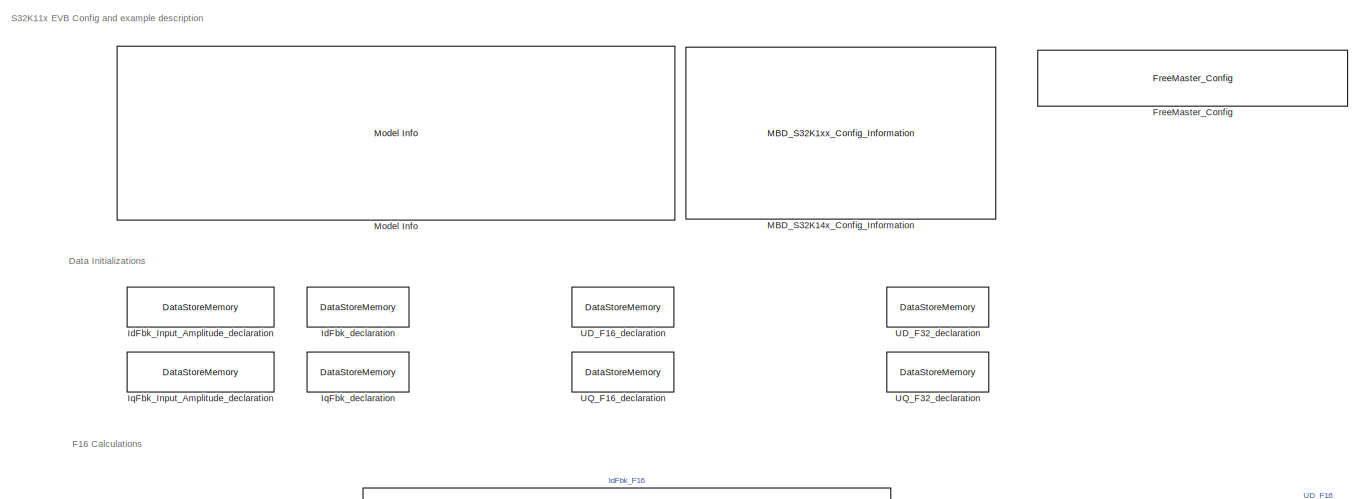
[diagram: root canvas - part 1/5, top center region]
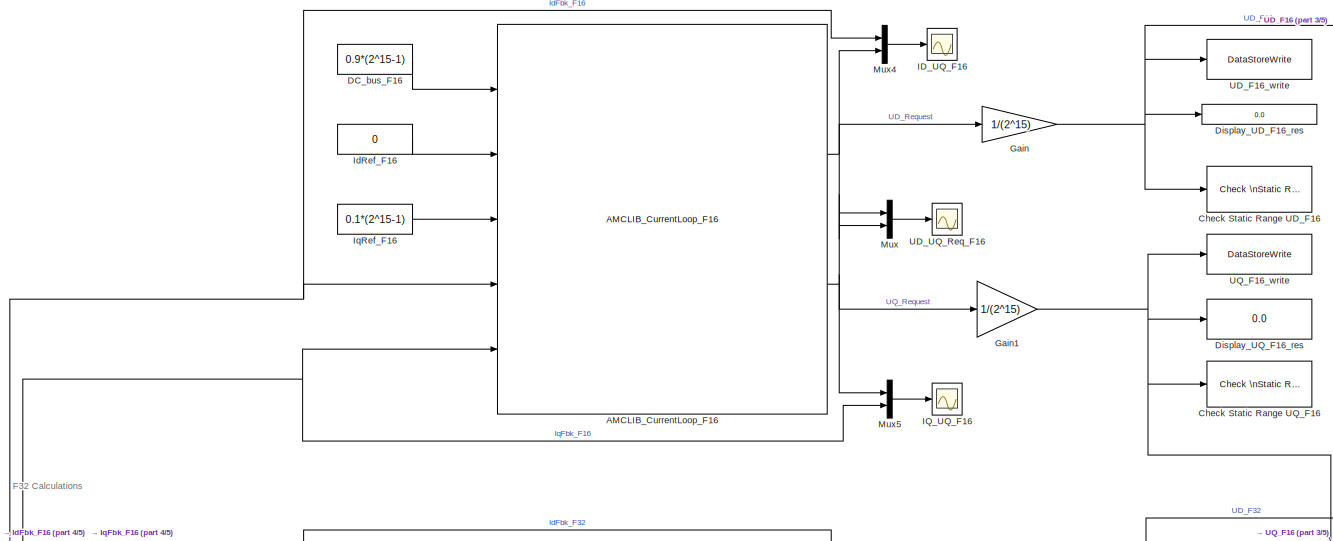
[diagram: root canvas - part 2/5, central region]
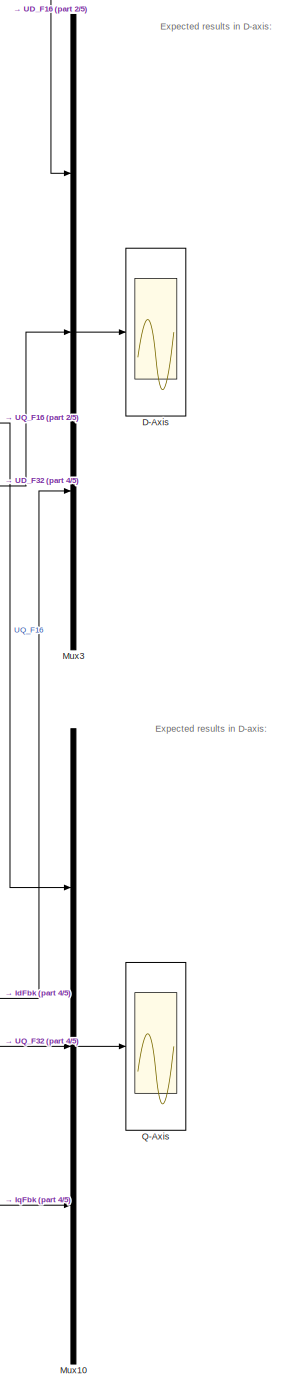
[diagram: root canvas - part 3/5, middle right region]
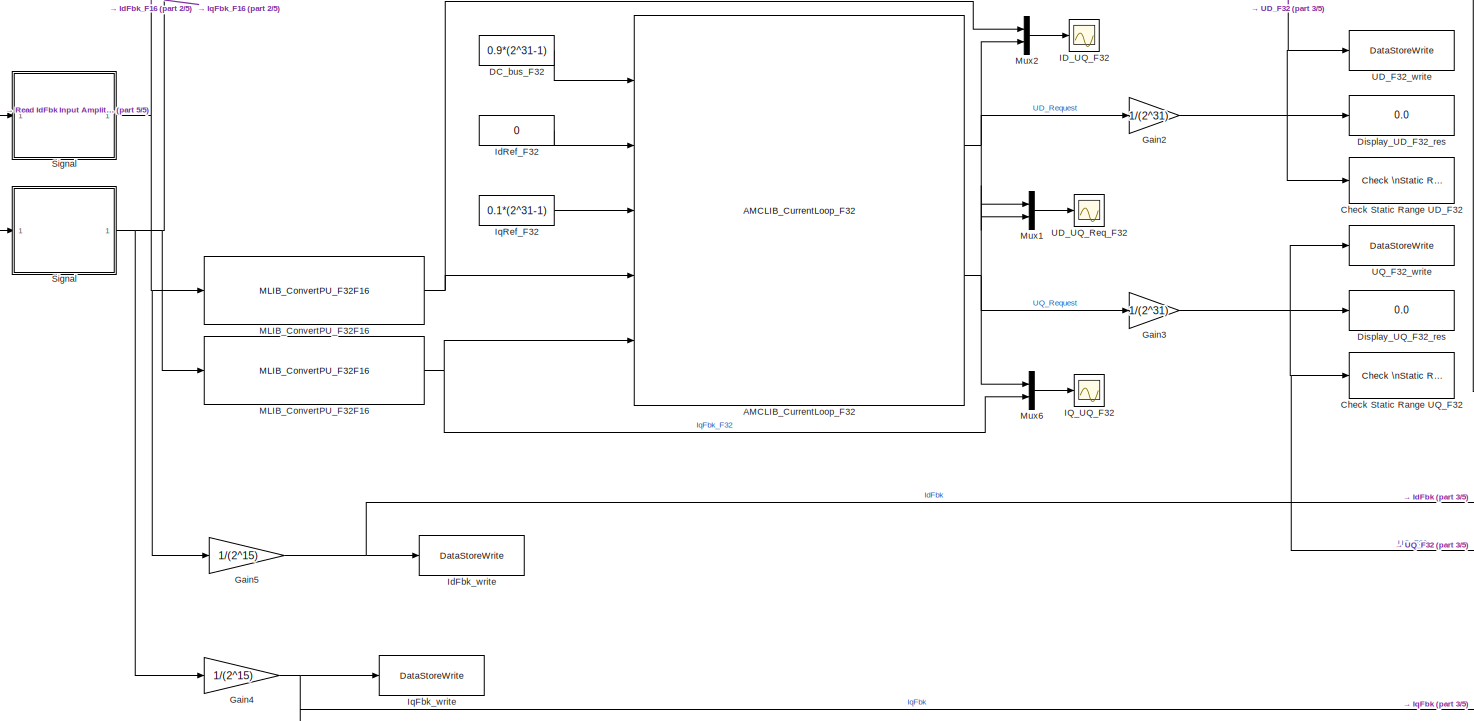
[diagram: root canvas - part 4/5, full width, bottom band]
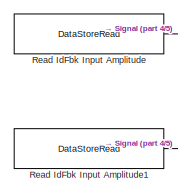
[diagram: root canvas - part 5/5, middle left region]
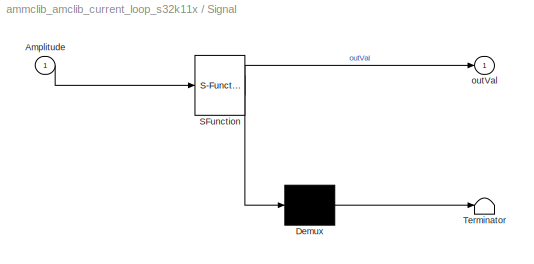
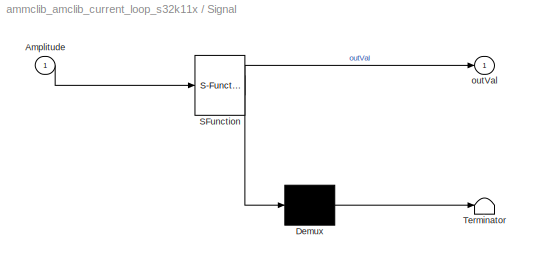
MODEL ammclib_amclib_current_loop_s32k11x
KIND model
CONFIG InitFcn = mbd_s32k_consistency_checks(bdroot(gcs));
BLOCK [Reference] AMCLIB_CurrentLoop_F16  REF=ammclib_bam_s32k11x/AMCLIB/bam_f16/AMCLIB_CurrentLoop_F16  (lib defined in mdl_5e542557caf3)
  Ports = [5, 2]
  SID = 703
  SourceBlock = ammclib_bam_s32k11x/AMCLIB/bam_f16/AMCLIB_CurrentLoop_F16
  SourceType = AMCLIB_CurrentLoop_F16
  f16CC1scD = 0.006*(2^15-1)
  f16CC1scQ = 0.006*(2^15-1)
  f16CC2scD = 0.006*(2^15-1)
  f16CC2scQ = 0.006*(2^15-1)
  u16NShiftD = 0
  u16NShiftQ = 0
BLOCK [Reference] AMCLIB_CurrentLoop_F32  REF=ammclib_bam_s32k11x/AMCLIB/bam_f32/AMCLIB_CurrentLoop_F32  (lib defined in mdl_5e542557caf3)
  Ports = [5, 2]
  SID = 745
  SourceBlock = ammclib_bam_s32k11x/AMCLIB/bam_f32/AMCLIB_CurrentLoop_F32
  SourceType = AMCLIB_CurrentLoop_F32
  f32CC1scD = 0.006*(2^31-1)
  f32CC1scQ = 0.006*(2^31-1)
  f32CC2scD = 0.006*(2^31-1)
  f32CC2scQ = 0.006*(2^31-1)
  u16NShiftD = 0
  u16NShiftQ = 0
BLOCK [Reference] Check Static Range UD_F16  REF=simulink/Model\nVerification/Check \nStatic Range
  Description = -0.9*(2^15-1) <= u <= 0.9*(2^15-1)
  Ports = [1]
  SID = 705
  SourceBlock = simulink/Model\nVerification/Check \nStatic Range
  SourceProductBaseCode = SL
  SourceProductName = Simulink
  SourceType = Checks_SRange
  enabled = on
  export = off
  icon = graphic
  max = 0.9*(2^15-1)
  max_included = on
  min = -0.9*(2^15-1)
  min_included = on
  stopWhenAssertionFail = on
BLOCK [Reference] Check Static Range UD_F32  REF=simulink/Model\nVerification/Check \nStatic Range
  Description = -0.9*(2^31-1) <= u <= 0.9*(2^31-1)
  Ports = [1]
  SID = 727
  SourceBlock = simulink/Model\nVerification/Check \nStatic Range
  SourceProductBaseCode = SL
  SourceProductName = Simulink
  SourceType = Checks_SRange
  enabled = on
  export = off
  icon = graphic
  max = 0.9*(2^31-1)
  max_included = on
  min = -0.9*(2^31-1)
  min_included = on
  stopWhenAssertionFail = on
BLOCK [Reference] Check Static Range UQ_F16   REF=simulink/Model\nVerification/Check \nStatic Range
  Description = -0.9*(2^15-1) <= u <= 0.9*(2^15-1)
  Ports = [1]
  SID = 585
  SourceBlock = simulink/Model\nVerification/Check \nStatic Range
  SourceProductBaseCode = SL
  SourceProductName = Simulink
  SourceType = Checks_SRange
  enabled = on
  export = off
  icon = graphic
  max = 0.9*(2^15-1)
  max_included = on
  min = -0.9*(2^15-1)
  min_included = on
  stopWhenAssertionFail = on
BLOCK [Reference] Check Static Range UQ_F32  REF=simulink/Model\nVerification/Check \nStatic Range
  Description = -0.9*(2^31-1) <= u <= 0.9*(2^31-1)
  Ports = [1]
  SID = 728
  SourceBlock = simulink/Model\nVerification/Check \nStatic Range
  SourceProductBaseCode = SL
  SourceProductName = Simulink
  SourceType = Checks_SRange
  enabled = on
  export = off
  icon = graphic
  max = 0.9*(2^31-1)
  max_included = on
  min = -0.9*(2^31-1)
  min_included = on
  stopWhenAssertionFail = on
BLOCK [Scope] D-Axis
  NumInputPorts = 1
  Ports = [1]
  SID = 701
  ScopeSpecificationString = Simulink.scopes.TimeScopeBlockCfg('CurrentConfiguration', extmgr.ConfigurationSet(extmgr.Configuration('Core','General UI',true),extmgr.Configuration('Core','Source UI',true),extmgr.Configuration('Sources','WiredSimulink',true,'DataLoggingVariableName','ScopeData6'),extmgr.Configuration('Visuals','Time Domain',true,'SerializedDisplays',{struct('MinYLimReal','-0.64952','MaxYLimReal','0.64952','YLab...<+1796ch>
BLOCK [Constant] DC_bus_F16
  OutDataTypeStr = Inherit: Inherit via back propagation
  SID = 643
  Value = 0.9*(2^15-1)
BLOCK [Constant] DC_bus_F32
  OutDataTypeStr = Inherit: Inherit via back propagation
  SID = 729
  Value = 0.9*(2^31-1)
BLOCK [Display] Display_UD_F16_res
  Decimation = 1
  Format = long
  Ports = [1]
  SID = 706
BLOCK [Display] Display_UD_F32_res
  Decimation = 1
  Format = long
  Ports = [1]
  SID = 730
BLOCK [Display] Display_UQ_F16_res
  Decimation = 1
  Format = long
  Ports = [1]
  SID = 579
BLOCK [Display] Display_UQ_F32_res
  Decimation = 1
  Format = long
  Ports = [1]
  SID = 731
BLOCK [Reference] FreeMaster_Config  REF=mbd_s32k1xx_ec_toolbox/Utility Blocks/FreeMaster_Config
  Ports = []
  SID = 564
  SourceBlock = mbd_s32k1xx_ec_toolbox/Utility Blocks/FreeMaster_Config
  SourceType = fm_s32k_config
  baudrate = 2400
  comm_buffer_size = 255
  comm_buffer_size_auto = on
  comm_rqueue_size = 32
  comm_rqueue_size_default = on
  interface = LPUART0
  isr_prio = 1
  max_rec_vars = 8
  max_scope_vars = 8
  mode = Poll-driven
  rec_buff_size = 1024
  rec_timebase = 0
  rec_timebase_unit = milliseconds
  rxd = PTB0: [LPUART0_RX | Receive]
  show_adv_opts = on
  txd = PTB1: [LPUART0_TX | Transmit]
  use_recorder = on
  use_scope = on
BLOCK [Gain] Gain
  Gain = 1/(2^15)
  OutDataTypeStr = Inherit: Inherit via back propagation
  ParamDataTypeStr = Inherit: Inherit via internal rule
  SID = 775
  SaturateOnIntegerOverflow = off
BLOCK [Gain] Gain1
  Gain = 1/(2^15)
  OutDataTypeStr = Inherit: Inherit via back propagation
  ParamDataTypeStr = Inherit: Inherit via internal rule
  SID = 776
  SaturateOnIntegerOverflow = off
BLOCK [Gain] Gain2
  Gain = 1/(2^31)
  OutDataTypeStr = Inherit: Inherit via back propagation
  ParamDataTypeStr = Inherit: Inherit via internal rule
  SID = 777
  SaturateOnIntegerOverflow = off
BLOCK [Gain] Gain3
  Gain = 1/(2^31)
  OutDataTypeStr = Inherit: Inherit via back propagation
  ParamDataTypeStr = Inherit: Inherit via internal rule
  SID = 778
  SaturateOnIntegerOverflow = off
BLOCK [Gain] Gain4
  Gain = 1/(2^15)
  OutDataTypeStr = Inherit: Inherit via back propagation
  ParamDataTypeStr = Inherit: Inherit via internal rule
  SID = 779
  SaturateOnIntegerOverflow = off
BLOCK [Gain] Gain5
  Gain = 1/(2^15)
  OutDataTypeStr = Inherit: Inherit via back propagation
  ParamDataTypeStr = Inherit: Inherit via internal rule
  SID = 785
  SaturateOnIntegerOverflow = off
BLOCK [Scope] ID_UQ_F16
  NumInputPorts = 1
  Ports = [1]
  SID = 718
  ScopeSpecificationString = Simulink.scopes.TimeScopeBlockCfg('CurrentConfiguration', extmgr.ConfigurationSet(extmgr.Configuration('Core','General UI',true),extmgr.Configuration('Core','Source UI',true),extmgr.Configuration('Sources','WiredSimulink',true,'DataLoggingVariableName','ScopeData2'),extmgr.Configuration('Visuals','Time Domain',true,'SerializedDisplays',{struct('MinYLimReal','-21282.5','MaxYLimReal','21282.5','YLab...<+1418ch>
BLOCK [Scope] ID_UQ_F32
  NumInputPorts = 1
  Ports = [1]
  SID = 732
  ScopeSpecificationString = Simulink.scopes.TimeScopeBlockCfg('CurrentConfiguration', extmgr.ConfigurationSet(extmgr.Configuration('Core','General UI',true),extmgr.Configuration('Core','Source UI',true),extmgr.Configuration('Sources','WiredSimulink',true,'DataLoggingVariableName','ScopeData4'),extmgr.Configuration('Visuals','Time Domain',true,'SerializedDisplays',{struct('MinYLimReal','-1394831543.75','MaxYLimReal','13948315...<+1464ch>
BLOCK [Scope] IQ_UQ_F16
  NumInputPorts = 1
  Ports = [1]
  SID = 719
  ScopeSpecificationString = Simulink.scopes.TimeScopeBlockCfg('CurrentConfiguration', extmgr.ConfigurationSet(extmgr.Configuration('Core','General UI',true),extmgr.Configuration('Core','Source UI',true),extmgr.Configuration('Sources','WiredSimulink',true,'DataLoggingVariableName','ScopeData3'),extmgr.Configuration('Visuals','Time Domain',true,'SerializedDisplays',{struct('MinYLimReal','-19015.5','MaxYLimReal','21029.5','YLab...<+1385ch>
BLOCK [Scope] IQ_UQ_F32
  NumInputPorts = 1
  Ports = [1]
  SID = 733
  ScopeSpecificationString = Simulink.scopes.TimeScopeBlockCfg('CurrentConfiguration', extmgr.ConfigurationSet(extmgr.Configuration('Core','General UI',true),extmgr.Configuration('Core','Source UI',true),extmgr.Configuration('Sources','WiredSimulink',true,'DataLoggingVariableName','ScopeData5'),extmgr.Configuration('Visuals','Time Domain',true,'SerializedDisplays',{struct('MinYLimReal','-1245986816.00000','MaxYLimReal','13782...<+1449ch>
BLOCK [DataStoreMemory] IdFbk_Input_Amplitude_declaration
  DataStoreName = IdFbk_Input_Amplitude
  InitialValue = 0.25*(2^15-1)
  OutDataTypeStr = int16
  OutMax = 32767
  OutMin = -32768
  Priority = 1
  SID = 648
  ShowAdditionalParam = off
  WriteAfterReadMsg = warning
  WriteAfterWriteMsg = warning
BLOCK [DataStoreMemory] IdFbk_declaration
  DataStoreName = IdFbk
  OutDataTypeStr = single
  OutMax = 1
  OutMin = -1
  Priority = 1
  SID = 649
  ShowAdditionalParam = off
  WriteAfterReadMsg = warning
  WriteAfterWriteMsg = warning
BLOCK [DataStoreWrite] IdFbk_write
  DataStoreName = IdFbk
  Ports = [1]
  SID = 786
BLOCK [Constant] IdRef_F16
  OutDataTypeStr = Inherit: Inherit via back propagation
  SID = 711
  Value = 0
BLOCK [Constant] IdRef_F32
  OutDataTypeStr = Inherit: Inherit via back propagation
  SID = 734
  Value = 0
BLOCK [DataStoreMemory] IqFbk_Input_Amplitude_declaration
  DataStoreName = IqFbk_Input_Amplitude
  InitialValue = 0.25*(2^15-1)
  OutDataTypeStr = int16
  OutMax = 32767
  OutMin = -32768
  Priority = 1
  SID = 709
  ShowAdditionalParam = off
  WriteAfterReadMsg = warning
  WriteAfterWriteMsg = warning
BLOCK [DataStoreMemory] IqFbk_declaration
  DataStoreName = IqFbk
  OutDataTypeStr = single
  OutMax = 1
  OutMin = -1
  Priority = 1
  SID = 710
  ShowAdditionalParam = off
  WriteAfterReadMsg = warning
  WriteAfterWriteMsg = warning
BLOCK [DataStoreWrite] IqFbk_write
  DataStoreName = IqFbk
  Ports = [1]
  SID = 784
BLOCK [Constant] IqRef_F16
  OutDataTypeStr = Inherit: Inherit via back propagation
  SID = 712
  Value = 0.1*(2^15-1)
BLOCK [Constant] IqRef_F32
  OutDataTypeStr = Inherit: Inherit via back propagation
  SID = 735
  Value = 0.1*(2^31-1)
BLOCK [Reference] MBD_S32K14x_Config_Information  REF=mbd_s32k1xx_ec_toolbox/MBD_S32K1xx_Config_Information
  ADC_PcrCheckEnDis = on
  AMMCLIB_PcrCheckEnDis = on
  CMP_PcrCheckEnDis = on
  CSEc_PcrCheckEnDis = on
  ConfigParams_PcrCheckEnDis = on
  FM_PcrCheckEnDis = on
  FTM_Dual_Edge_Inputs_PcrCheckEnDis = on
  FTM_Hall_Sensor_Inputs_PcrCheckEnDis = on
  FTM_Input_Edge_Inputs_PcrCheckEnDis = on
  FTM_PWM_PcrCheckEnDis = on
  FTM_Quadrature_Inputs_PcrCheckEnDis = on
  FlexCAN_PcrCheckEnDis = on
  FlexIO_PcrCheckEnDis = on
  GPIO_InputPcrCheckEnDis = on
  GPIO_OutputPcrCheckEnDis = on
  LIN_PcrCheckEnDis = on
  LPI2C_PcrCheckEnDis = on
  LPSPI_PcrCheckEnDis = on
  LPTMR_PcrCheckEnDis = on
  LPUART_PcrCheckEnDis = on
  ModelRef_PcrCheckEnDis = on
  PDB0_PcrCheckEnDis = on
  PIT_PcrCheckEnDis = on
  Ports = []
  Priority = 0
  Profile_PcrCheckEnDis = on
  RTC_PcrCheckEnDis = on
  SBC_PcrCheckEnDis = on
  SID = 1
  SourceBlock = mbd_s32k1xx_ec_toolbox/MBD_S32K1xx_Config_Information
  SourceType = MBDTBX_EC_S32K
  WDOG_PcrCheckEnDis = on
  config_params = []
  disp_str = Target : S32K142-16KB_SRAM\nPackage : 100-pin\nSystem clock : 80 MHz\nXTAL clock : External 8 MHz\nCompiler : GCC\nTarget Type : FLASH\nDownload Code after build : (OpenSDA: E)\nStep Tick Interrupt Priority : 15
  ds_import_enable = on
  eDMA_PcrCheckEnDis = on
  gcc_target_assemble_opts = -mcpu=cortex-m0plus -mthumb -g
  gcc_target_compile_opts = -mcpu=cortex-m0plus -mthumb -O1 -g -gstrict-dwarf
  gcc_target_default_lcf = on
  gcc_target_link_opts = -mcpu=cortex-m0plus -mthumb
  gcc_target_user_lcf = S32K116_17_flash.ld
  ghs_target_assemble_opts = -mcpu=cortexm0plus -mthumb -fsoft --gnu_asm
  ghs_target_compile_opts = -mcpu=cortexm0plus -mthumb -fsoft -Ogeneral -Wundef -Wimplicit-int -Wshadow -Wtrigraphs --no_commons --gnu_asm -gnu99 -gdwarf-2 -G
  ghs_target_default_lcf = off
  ghs_target_link_opts = -mcpu=cortexm0plus -mthumb -fsoft
  ghs_target_user_lcf = S32K116_17_flash.ld
  iar_target_assemble_opts = --thumb
  iar_target_compile_opts = --thumb -Ol -e --debug --dlib_config normal
  iar_target_default_lcf = off
  iar_target_link_opts = --no_exceptions --vfe --inline
  iar_target_user_lcf = S32K116_17_flash.icf
  mbdt_ver = 0
  mcu_steptick_prio = 3
  mcu_steptick_timer = LPIT Channel 0
  mcu_system_clock_freq = 40
  mcu_target_name = S32K116
  mcu_target_package = 48-LQFP
  mcu_target_sram_size = 17KB
  mcu_xtal_freq = External 40
  pil_download_enable = off
  pil_download_rate = 57600
  pil_opensda_drive = Custom
  pil_opensda_drive_custom = D
  pil_uart_instance = 0
  pil_uart_rx = PTA2: [LPUART0_RX | Receive]
  pil_uart_tx = PTA3: [LPUART0_TX | Transmit]
  rbl_com_port = Custom
  rbl_com_port_custom = COM1
  rbl_download_enable = on
  rbl_download_interface = OpenSDA
  rbl_restart_request = off
  rbl_start_delay = 5000000
  target_compiler = GCC
  target_memory = FLASH
BLOCK [Reference] MLIB_ConvertPU_F32F16   REF=ammclib_bam_s32k11x/MLIB/bam_f32/MLIB_ConvertPU_F32F16  (lib defined in mdl_5e542557caf3)
  Ports = [1, 1]
  SID = 722
  SourceBlock = ammclib_bam_s32k11x/MLIB/bam_f32/MLIB_ConvertPU_F32F16
  SourceType = MLIB_ConvertPU_F32
BLOCK [Reference] MLIB_ConvertPU_F32F16    REF=ammclib_bam_s32k11x/MLIB/bam_f32/MLIB_ConvertPU_F32F16  (lib defined in mdl_5e542557caf3)
  Ports = [1, 1]
  SID = 744
  SourceBlock = ammclib_bam_s32k11x/MLIB/bam_f32/MLIB_ConvertPU_F32F16
  SourceType = MLIB_ConvertPU_F32
BLOCK [Reference] Model Info  REF=simulink/Model-Wide\nUtilities/Model Info
  DisplayStringWithTags = Model Name: %<ModelName>\n\nDescription: %<Description>
  Frame = off
  HorizontalTextAlignment = Left
  LeftAlignmentValue = 0.02
  MaskDisplayString = Model Name: ammclib_amclib_current_loop_s32k11x\\n\\nDescription: This model tests the AMMCLIB AMCLIB Current Loop blocks\\n\\nValidation:\\n- Run the model in Simulation and compare the Inputs vs Outputs results.\\n- Open Freemaster (ammclib_amclib_current_loop_s32k11x.pmp) and compare the HW results against the Simulated ones
  Ports = []
  SID = 524
  SourceBlock = simulink/Model-Wide\nUtilities/Model Info
  SourceProductBaseCode = SL
  SourceProductName = Simulink
  SourceType = CMBlock
BLOCK [Mux] Mux
  DisplayOption = bar
  Inputs = 2
  Ports = [2, 1]
  SID = 716
BLOCK [Mux] Mux1
  DisplayOption = bar
  Inputs = 2
  Ports = [2, 1]
  SID = 737
BLOCK [Mux] Mux10
  DisplayOption = bar
  Inputs = 3
  Ports = [3, 1]
  SID = 773
BLOCK [Mux] Mux2
  DisplayOption = bar
  Inputs = 2
  Ports = [2, 1]
  SID = 738
BLOCK [Mux] Mux3
  DisplayOption = bar
  Inputs = 3
  Ports = [3, 1]
  SID = 699
BLOCK [Mux] Mux4
  DisplayOption = bar
  Inputs = 2
  Ports = [2, 1]
  SID = 717
BLOCK [Mux] Mux5
  DisplayOption = bar
  Inputs = 2
  Ports = [2, 1]
  SID = 720
BLOCK [Mux] Mux6
  DisplayOption = bar
  Inputs = 2
  Ports = [2, 1]
  SID = 739
BLOCK [Scope] Q-Axis
  NumInputPorts = 1
  Ports = [1]
  SID = 772
  ScopeSpecificationString = Simulink.scopes.TimeScopeBlockCfg('CurrentConfiguration', extmgr.ConfigurationSet(extmgr.Configuration('Core','General UI',true),extmgr.Configuration('Core','Source UI',true),extmgr.Configuration('Sources','WiredSimulink',true,'DataLoggingVariableName','ScopeData10'),extmgr.Configuration('Visuals','Time Domain',true,'SerializedDisplays',{struct('MinYLimReal','-0.58031','MaxYLimReal','0.64183','YLa...<+1765ch>
BLOCK [DataStoreRead] Read IdFbk Input Amplitude
  DataStoreName = IdFbk_Input_Amplitude
  Ports = [0, 1]
  SID = 651
BLOCK [DataStoreRead] Read IdFbk Input Amplitude1
  DataStoreName = IqFbk_Input_Amplitude
  Ports = [0, 1]
  SID = 713
BLOCK [SubSystem] Signal
  ErrorFcn = Stateflow.Translate.translate
  PermitHierarchicalResolution = ExplicitOnly
  Ports = [1, 1]
  RequestExecContextInheritance = off
  SFBlockType = Chart
  SID = 650
  TreatAsAtomicUnit = on
  Variant = off
BLOCK [SubSystem] Signal 
  ErrorFcn = Stateflow.Translate.translate
  PermitHierarchicalResolution = ExplicitOnly
  Ports = [1, 1]
  RequestExecContextInheritance = off
  SFBlockType = Chart
  SID = 714
  TreatAsAtomicUnit = on
  Variant = off
BLOCK [Demux] Signal / Demux 
  Outputs = 1
  Ports = [1, 1]
  SID = 714::32
BLOCK [S-Function] Signal / SFunction 
  EnableBusSupport = on
  FunctionName = sf_sfun
  PortCounts = [1 2]
  Ports = [1, 2]
  SFcnIsStateOwnerBlock = off
  SFunctionDeploymentMode = off
  SID = 714::31
  Tag = Stateflow S-Function ammclib_amclib_current_loop_s32k11x 2
BLOCK [Terminator] Signal / Terminator 
  SID = 714::33
BLOCK [Inport] Signal /Amplitude
  IconDisplay = Port number
  SID = 714::30
BLOCK [Outport] Signal /outVal
  IconDisplay = Port number
  SID = 714::5
BLOCK [Demux] Signal/ Demux 
  Outputs = 1
  Ports = [1, 1]
  SID = 650::32
BLOCK [S-Function] Signal/ SFunction 
  EnableBusSupport = on
  FunctionName = sf_sfun
  PortCounts = [1 2]
  Ports = [1, 2]
  SFcnIsStateOwnerBlock = off
  SFunctionDeploymentMode = off
  SID = 650::31
  Tag = Stateflow S-Function ammclib_amclib_current_loop_s32k11x 1
BLOCK [Terminator] Signal/ Terminator 
  SID = 650::33
BLOCK [Inport] Signal/Amplitude
  IconDisplay = Port number
  SID = 650::30
BLOCK [Outport] Signal/outVal
  IconDisplay = Port number
  SID = 650::5
BLOCK [DataStoreMemory] UD_F16_declaration
  DataStoreName = UD_F16
  OutDataTypeStr = single
  Priority = 2
  ReadBeforeWriteMsg = warning
  SID = 580
  ShowAdditionalParam = off
  WriteAfterReadMsg = warning
  WriteAfterWriteMsg = warning
BLOCK [DataStoreWrite] UD_F16_write
  DataStoreName = UD_F16
  Ports = [1]
  SID = 707
BLOCK [DataStoreMemory] UD_F32_declaration
  DataStoreName = UD_F32
  OutDataTypeStr = single
  Priority = 2
  ReadBeforeWriteMsg = warning
  SID = 679
  ShowAdditionalParam = off
  WriteAfterReadMsg = warning
  WriteAfterWriteMsg = warning
BLOCK [DataStoreWrite] UD_F32_write
  DataStoreName = UD_F32
  Ports = [1]
  SID = 740
BLOCK [Scope] UD_UQ_Req_F16
  NumInputPorts = 1
  Ports = [1]
  SID = 715
  ScopeSpecificationString = Simulink.scopes.TimeScopeBlockCfg('CurrentConfiguration', extmgr.ConfigurationSet(extmgr.Configuration('Core','General UI',true),extmgr.Configuration('Core','Source UI',true),extmgr.Configuration('Sources','WiredSimulink',true,'DataLoggingVariableName','ScopeData1'),extmgr.Configuration('Visuals','Time Domain',true,'SerializedDisplays',{struct('MinYLimReal','-21282.5','MaxYLimReal','21282.5','YLab...<+1382ch>
BLOCK [Scope] UD_UQ_Req_F32
  NumInputPorts = 1
  Ports = [1]
  SID = 741
  ScopeSpecificationString = Simulink.scopes.TimeScopeBlockCfg('CurrentConfiguration', extmgr.ConfigurationSet(extmgr.Configuration('Core','General UI',true),extmgr.Configuration('Core','Source UI',true),extmgr.Configuration('Sources','WiredSimulink',true,'DataLoggingVariableName','ScopeData6'),extmgr.Configuration('Visuals','Time Domain',true,'SerializedDisplays',{struct('MinYLimReal','-1394831543.75','MaxYLimReal','13948315...<+1451ch>
BLOCK [DataStoreMemory] UQ_F16_declaration
  DataStoreName = UQ_F16
  OutDataTypeStr = single
  Priority = 3
  ReadBeforeWriteMsg = warning
  SID = 588
  ShowAdditionalParam = off
  WriteAfterReadMsg = warning
  WriteAfterWriteMsg = warning
BLOCK [DataStoreWrite] UQ_F16_write
  DataStoreName = UQ_F16
  Ports = [1]
  SID = 581
BLOCK [DataStoreMemory] UQ_F32_declaration
  DataStoreName = UQ_F32
  OutDataTypeStr = single
  Priority = 3
  ReadBeforeWriteMsg = warning
  SID = 680
  ShowAdditionalParam = off
  WriteAfterReadMsg = warning
  WriteAfterWriteMsg = warning
BLOCK [DataStoreWrite] UQ_F32_write
  DataStoreName = UQ_F32
  Ports = [1]
  SID = 742
ANNOTATION (root): \n \n Expected results in D-axis: \n \n
ANNOTATION (root): \n \n Expected results in D-axis: \n
ANNOTATION (root): Data Initializations
ANNOTATION (root): F16 Calculations
ANNOTATION (root): F32 Calculations
ANNOTATION (root): S32K11x EVB Config and example description
NET AMCLIB_CurrentLoop_F16:1 -> Gain:1, Mux4:2, Mux:1
NET AMCLIB_CurrentLoop_F16:2 -> Gain1:1, Mux5:1, Mux:2
NET AMCLIB_CurrentLoop_F32:1 -> Gain2:1, Mux1:1, Mux2:2
NET AMCLIB_CurrentLoop_F32:2 -> Gain3:1, Mux1:2, Mux6:1
LINE DC_bus_F16:1 -> AMCLIB_CurrentLoop_F16:1
LINE DC_bus_F32:1 -> AMCLIB_CurrentLoop_F32:1
NET Gain1:1 -> Check Static Range UQ_F16 :1, Display_UQ_F16_res:1, Mux10:1, UQ_F16_write:1
NET Gain2:1 -> Check Static Range UD_F32:1, Display_UD_F32_res:1, Mux3:2, UD_F32_write:1
NET Gain3:1 -> Check Static Range UQ_F32:1, Display_UQ_F32_res:1, Mux10:2, UQ_F32_write:1
NET Gain4:1 -> IqFbk_write:1, Mux10:3
NET Gain5:1 -> IdFbk_write:1, Mux3:3
NET Gain:1 -> Check Static Range UD_F16:1, Display_UD_F16_res:1, Mux3:1, UD_F16_write:1
LINE IdRef_F16:1 -> AMCLIB_CurrentLoop_F16:2
LINE IdRef_F32:1 -> AMCLIB_CurrentLoop_F32:2
LINE IqRef_F16:1 -> AMCLIB_CurrentLoop_F16:3
LINE IqRef_F32:1 -> AMCLIB_CurrentLoop_F32:3
NET MLIB_ConvertPU_F32F16  :1 -> AMCLIB_CurrentLoop_F32:5, Mux6:2
NET MLIB_ConvertPU_F32F16 :1 -> AMCLIB_CurrentLoop_F32:4, Mux2:1
LINE Mux10:1 -> Q-Axis:1
LINE Mux1:1 -> UD_UQ_Req_F32:1
LINE Mux2:1 -> ID_UQ_F32:1
LINE Mux3:1 -> D-Axis:1
LINE Mux4:1 -> ID_UQ_F16:1
LINE Mux5:1 -> IQ_UQ_F16:1
LINE Mux6:1 -> IQ_UQ_F32:1
LINE Mux:1 -> UD_UQ_Req_F16:1
LINE Read IdFbk Input Amplitude1:1 -> Signal :1
LINE Read IdFbk Input Amplitude:1 -> Signal:1
LINE Signal / Demux :1 -> Signal / Terminator :1
LINE Signal / SFunction :1 -> Signal / Demux :1
LINE Signal / SFunction :2 -> Signal /outVal:1
LINE Signal /Amplitude:1 -> Signal / SFunction :1
NET Signal :1 -> AMCLIB_CurrentLoop_F16:5, Gain4:1, MLIB_ConvertPU_F32F16  :1, Mux5:2
LINE Signal/ Demux :1 -> Signal/ Terminator :1
LINE Signal/ SFunction :1 -> Signal/ Demux :1
LINE Signal/ SFunction :2 -> Signal/outVal:1
LINE Signal/Amplitude:1 -> Signal/ SFunction :1
NET Signal:1 -> AMCLIB_CurrentLoop_F16:4, Gain5:1, MLIB_ConvertPU_F32F16 :1, Mux4:1
note: NET lines group one-source signal fan-out (src -> all destinations, sorted); 1:1 wires keep LINE
CHART Signal states=2 transitions=3
  STATE_LABEL 'A\\ndu:\\noutVal = Amplitude;\\ncntr=cntr+1;'
  STATE_LABEL 'A1\\ndu:\\noutVal = -Amplitude;\\ncntr=cntr-1;'
CHART Signal  states=2 transitions=3
  STATE_LABEL 'A\\ndu:\\noutVal = Amplitude;\\ncntr=cntr+1;'
  STATE_LABEL 'A1\\ndu:\\noutVal = -Amplitude;\\ncntr=cntr-1;'
